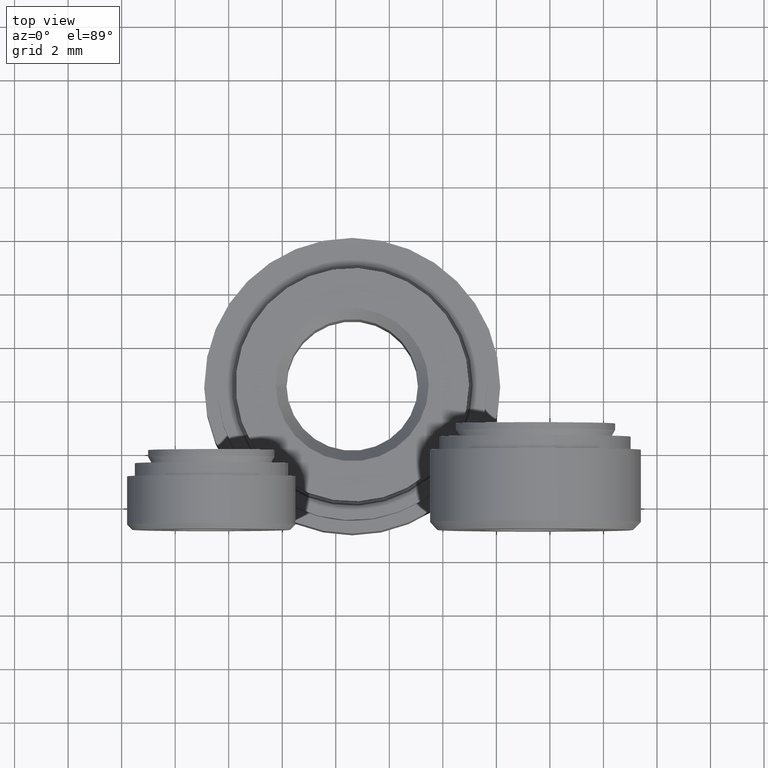
[diagram: clean part render]
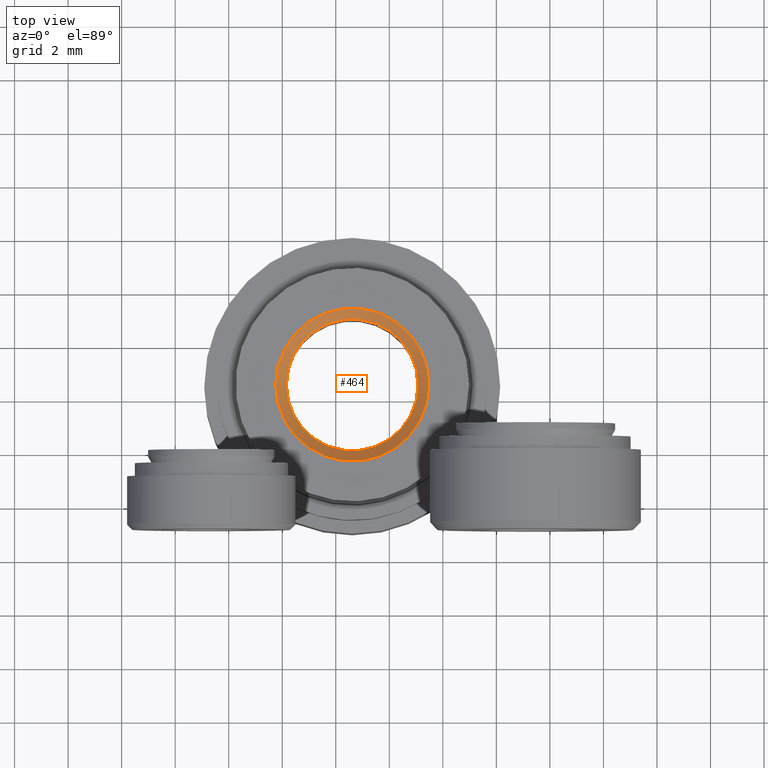
[diagram: same view with one face highlighted and labeled with its STEP entity id]
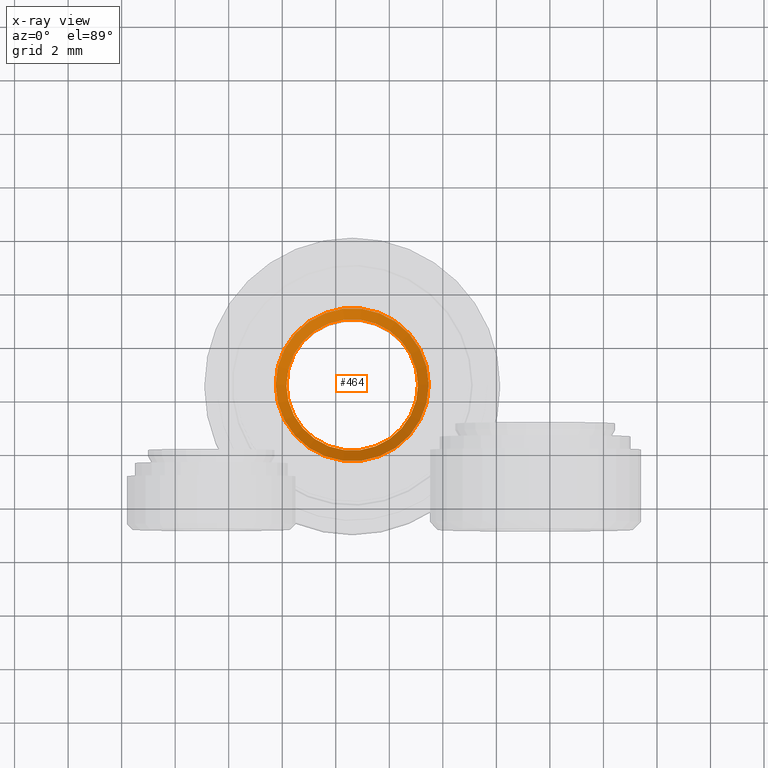
[diagram: x-ray of the same camera — body ghosted, the highlighted face saturated]
A machine part, top view. The second image highlights one B-rep face of the part: STEP entity #464.
The next image is the same camera in x-ray: the body ghosted, the highlighted face saturated — about 0% of this face is hidden behind the body in this view.
In plain terms, the highlighted conical surface has half-angle 45 deg.
Its self-contained STEP definition (entity closure, byte-faithful):
#71=FACE_BOUND('',#156,.T.);
#113=FACE_OUTER_BOUND('',#155,.T.);
#155=EDGE_LOOP('',(#365));
#156=EDGE_LOOP('',(#366));
#239=CIRCLE('',#511,2.4585);
#240=CIRCLE('',#512,2.8585);
#281=VERTEX_POINT('',#784);
#282=VERTEX_POINT('',#786);
#323=EDGE_CURVE('',#281,#281,#239,.T.);
#324=EDGE_CURVE('',#282,#282,#240,.T.);
#365=ORIENTED_EDGE('',*,*,#323,.T.);
#366=ORIENTED_EDGE('',*,*,#324,.T.);
#449=CONICAL_SURFACE('',#510,2.6585,0.785398163397448);
#464=ADVANCED_FACE('',(#113,#71),#449,.F.);
#510=AXIS2_PLACEMENT_3D('',#783,#602,#603);
#511=AXIS2_PLACEMENT_3D('',#785,#604,#605);
#512=AXIS2_PLACEMENT_3D('',#787,#606,#607);
#602=DIRECTION('center_axis',(0.,0.,1.));
#603=DIRECTION('ref_axis',(-1.,0.,0.));
#604=DIRECTION('center_axis',(0.,0.,-1.));
#605=DIRECTION('ref_axis',(-1.,0.,0.));
#606=DIRECTION('center_axis',(0.,0.,1.));
#607=DIRECTION('ref_axis',(-1.,0.,0.));
#783=CARTESIAN_POINT('Origin',(0.,0.,6.09));
#784=CARTESIAN_POINT('',(-2.4585,-3.01079415570377E-16,5.89));
#785=CARTESIAN_POINT('Origin',(0.,0.,5.89));
#786=CARTESIAN_POINT('',(2.8585,3.50065287536271E-16,6.29));
#787=CARTESIAN_POINT('Origin',(0.,0.,6.29));